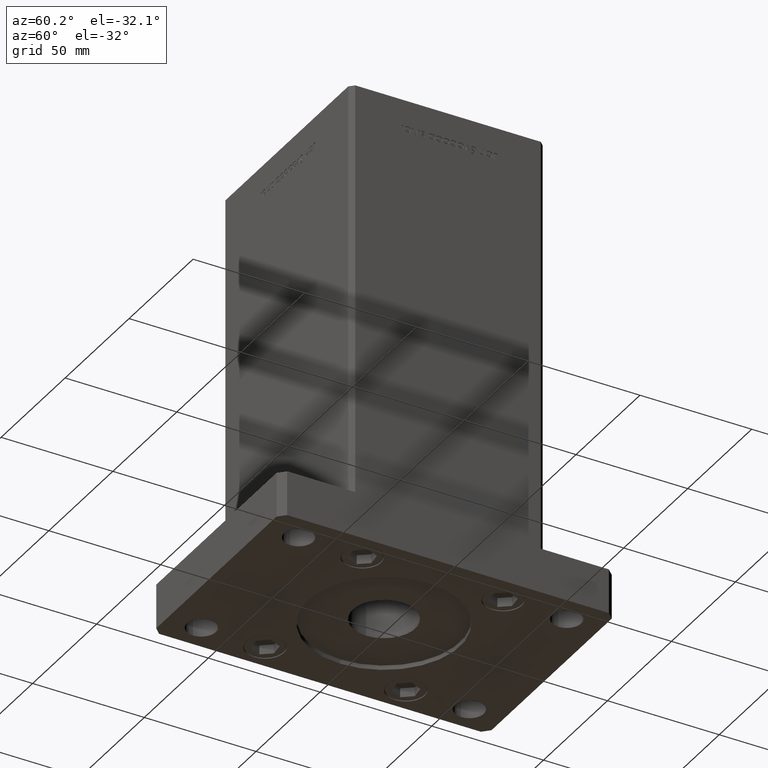
[diagram: clean part render]
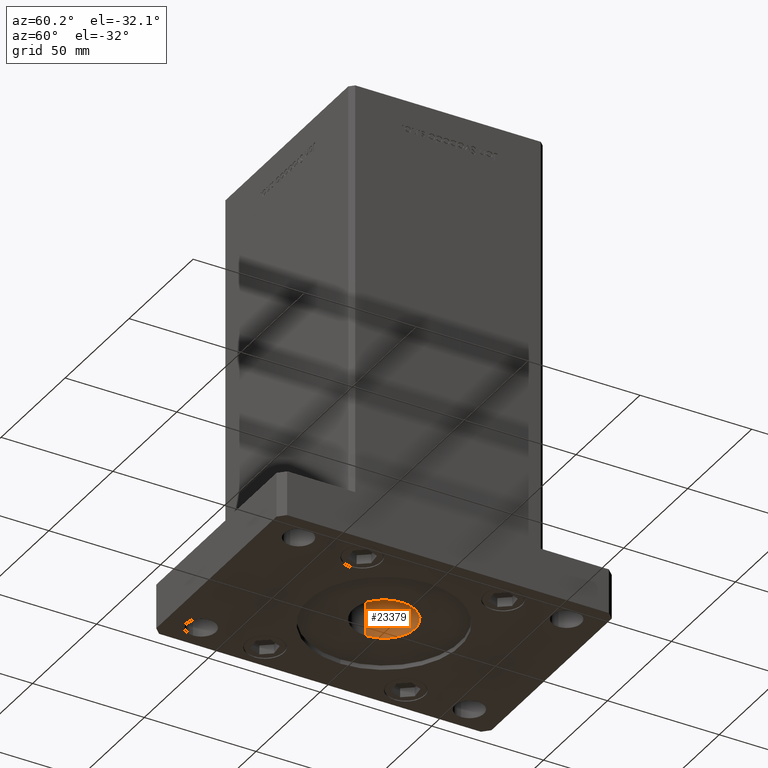
[diagram: same view with one face highlighted and labeled with its STEP entity id]
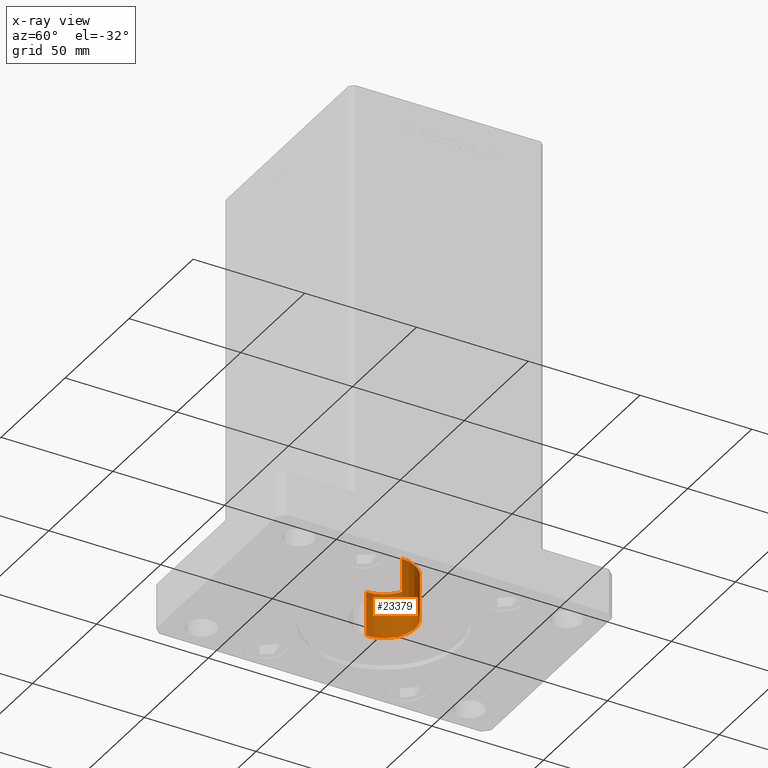
[diagram: x-ray of the same camera — body ghosted, the highlighted face saturated]
A machine part, auxiliary view. The second image highlights one B-rep face of the part: STEP entity #23379.
The next image is the same camera in x-ray: the body ghosted, the highlighted face saturated — about 14% of this face is hidden behind the body in this view.
In plain terms, the highlighted cylindrical surface (edge-blend (fillet) strip) has radius 14 mm, axis along (0, 0, 1).
Its self-contained STEP definition (entity closure, byte-faithful):
#36 = CARTESIAN_POINT ( 'NONE',  ( 14.00000000000000000, 0.000000000000000000, 0.000000000000000000 ) ) ;
#993 = EDGE_CURVE ( 'NONE', #19742, #33648, #24580, .T. ) ;
#1085 = CIRCLE ( 'NONE', #45319, 14.00000000000000000 ) ;
#1110 = CYLINDRICAL_SURFACE ( 'NONE', #43818, 14.00000000000000000 ) ;
#4451 = VECTOR ( 'NONE', #27376, 1000.000000000000000 ) ;
#4659 = CARTESIAN_POINT ( 'NONE',  ( 0.000000000000000000, 0.000000000000000000, 0.000000000000000000 ) ) ;
#5599 = ORIENTED_EDGE ( 'NONE', *, *, #993, .F. ) ;
#5696 = EDGE_CURVE ( 'NONE', #36611, #33648, #45329, .T. ) ;
#5744 = DIRECTION ( 'NONE',  ( -1.000000000000000000, 0.000000000000000000, 0.000000000000000000 ) ) ;
#7267 = DIRECTION ( 'NONE',  ( 1.000000000000000000, 0.000000000000000000, 0.000000000000000000 ) ) ;
#7751 = CARTESIAN_POINT ( 'NONE',  ( -14.00000000000000000, 1.714505518806294638E-15, 0.000000000000000000 ) ) ;
#8185 = VECTOR ( 'NONE', #26045, 1000.000000000000000 ) ;
#8255 = EDGE_LOOP ( 'NONE', ( #5599, #40040, #43652, #24983 ) ) ;
#8410 = CARTESIAN_POINT ( 'NONE',  ( 14.00000000000000000, 0.000000000000000000, 22.00000000000000000 ) ) ;
#9274 = CARTESIAN_POINT ( 'NONE',  ( 14.00000000000000000, 0.000000000000000000, 2.000000000000000000 ) ) ;
#14225 = CARTESIAN_POINT ( 'NONE',  ( -14.00000000000000000, 1.714505518806294638E-15, 22.00000000000000000 ) ) ;
#15209 = EDGE_CURVE ( 'NONE', #38717, #36611, #30119, .T. ) ;
#17554 = AXIS2_PLACEMENT_3D ( 'NONE', #32511, #20570, #7267 ) ;
#19742 = VERTEX_POINT ( 'NONE', #41719 ) ;
#20570 = DIRECTION ( 'NONE',  ( 0.000000000000000000, 0.000000000000000000, 1.000000000000000000 ) ) ;
#23379 = ADVANCED_FACE ( 'NONE', ( #41588 ), #1110, .F. ) ;
#24580 = LINE ( 'NONE', #7751, #4451 ) ;
#24983 = ORIENTED_EDGE ( 'NONE', *, *, #5696, .T. ) ;
#26045 = DIRECTION ( 'NONE',  ( -0.000000000000000000, -0.000000000000000000, 1.000000000000000000 ) ) ;
#27376 = DIRECTION ( 'NONE',  ( -0.000000000000000000, -0.000000000000000000, 1.000000000000000000 ) ) ;
#29883 = DIRECTION ( 'NONE',  ( 1.000000000000000000, 0.000000000000000000, 0.000000000000000000 ) ) ;
#30119 = LINE ( 'NONE', #36, #8185 ) ;
#32511 = CARTESIAN_POINT ( 'NONE',  ( 0.000000000000000000, 0.000000000000000000, 22.00000000000000000 ) ) ;
#33095 = DIRECTION ( 'NONE',  ( -0.000000000000000000, -0.000000000000000000, 1.000000000000000000 ) ) ;
#33648 = VERTEX_POINT ( 'NONE', #14225 ) ;
#34485 = DIRECTION ( 'NONE',  ( -0.000000000000000000, -0.000000000000000000, 1.000000000000000000 ) ) ;
#36611 = VERTEX_POINT ( 'NONE', #8410 ) ;
#37175 = CARTESIAN_POINT ( 'NONE',  ( 0.000000000000000000, 0.000000000000000000, 2.000000000000000000 ) ) ;
#38717 = VERTEX_POINT ( 'NONE', #9274 ) ;
#40040 = ORIENTED_EDGE ( 'NONE', *, *, #48945, .F. ) ;
#41588 = FACE_OUTER_BOUND ( 'NONE', #8255, .T. ) ;
#41719 = CARTESIAN_POINT ( 'NONE',  ( -14.00000000000000000, 1.714505518806294638E-15, 2.000000000000000000 ) ) ;
#43652 = ORIENTED_EDGE ( 'NONE', *, *, #15209, .T. ) ;
#43818 = AXIS2_PLACEMENT_3D ( 'NONE', #4659, #34485, #29883 ) ;
#45319 = AXIS2_PLACEMENT_3D ( 'NONE', #37175, #33095, #5744 ) ;
#45329 = CIRCLE ( 'NONE', #17554, 14.00000000000000000 ) ;
#48945 = EDGE_CURVE ( 'NONE', #38717, #19742, #1085, .T. ) ;